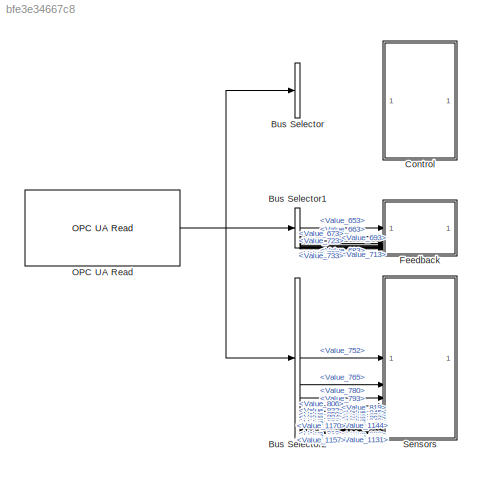
MODEL slx_bfe3e34667c8
KIND model
CONFIG AbsTol = auto
CONFIG EnableMultiTasking = off
CONFIG FixedStep = auto
CONFIG MaxStep = auto
CONFIG MinStep = auto
CONFIG RelTol = 1e-3
CONFIG SampleTimeConstraint = Unconstrained
CONFIG SolverName = VariableStepAuto
CONFIG StartTime = 0.0
CONFIG StopTime = 10.0
BLOCK [BusSelector] Bus Selector
  OutputSignals = Value_527,Value_537,Value_547,Value_557,Value_567,Value_577,Value_587,Value_597,Value_607,Value_617,Value_627,Value_637
BLOCK [BusSelector] Bus Selector1
  OutputSignals = Value_653,Value_663,Value_673,Value_683,Value_693,Value_703,Value_713,Value_723,Value_733
BLOCK [BusSelector] Bus Selector2
  OutputSignals = Value_752,Value_765,Value_780,Value_793,Value_806,Value_819,Value_832,Value_845,Value_858,Value_871,Value_884,Value_897,Value_910,Value_923,Value_936,Value_949,Value_962,Value_975,Value_988,Value_1001,Value_1014,Value_1027,Value_1040,Value_1053,Value_1066,Value_1079,Value_1092,Value_1105,Value_1118,Value_1131,Value_1144,Value_1157,Value_1170
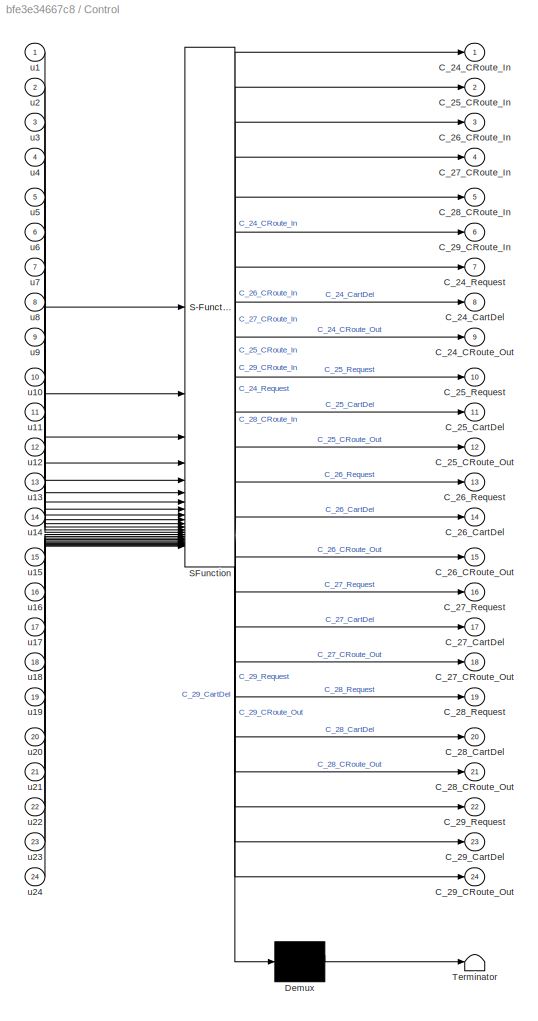
BLOCK [SubSystem] Control
  ErrorFcn = Stateflow.Translate.translate
  PermitHierarchicalResolution = ExplicitOnly
  SFBlockType = MATLAB Function
  TreatAsAtomicUnit = on
BLOCK [Demux] Control/ Demux 
  Outputs = 1
BLOCK [S-Function] Control/ SFunction 
  EnableBusSupport = off
  FunctionName = sf_sfun
  PortCounts = [24 25]
  SFcnIsStateOwnerBlock = off
  SFunctionDeploymentMode = off
  Tag = Stateflow S-Function 1
BLOCK [Terminator] Control/ Terminator 
BLOCK [Outport] Control/C_24_CRoute_In
BLOCK [Outport] Control/C_24_CRoute_Out
  Port = 9
BLOCK [Outport] Control/C_24_CartDel
  Port = 8
BLOCK [Outport] Control/C_24_Request
  Port = 7
BLOCK [Outport] Control/C_25_CRoute_In
  Port = 2
BLOCK [Outport] Control/C_25_CRoute_Out
  Port = 12
BLOCK [Outport] Control/C_25_CartDel
  Port = 11
BLOCK [Outport] Control/C_25_Request
  Port = 10
BLOCK [Outport] Control/C_26_CRoute_In
  Port = 3
BLOCK [Outport] Control/C_26_CRoute_Out
  Port = 15
BLOCK [Outport] Control/C_26_CartDel
  Port = 14
BLOCK [Outport] Control/C_26_Request
  Port = 13
BLOCK [Outport] Control/C_27_CRoute_In
  Port = 4
BLOCK [Outport] Control/C_27_CRoute_Out
  Port = 18
BLOCK [Outport] Control/C_27_CartDel
  Port = 17
BLOCK [Outport] Control/C_27_Request
  Port = 16
BLOCK [Outport] Control/C_28_CRoute_In
  Port = 5
BLOCK [Outport] Control/C_28_CRoute_Out
  Port = 21
BLOCK [Outport] Control/C_28_CartDel
  Port = 20
BLOCK [Outport] Control/C_28_Request
  Port = 19
BLOCK [Outport] Control/C_29_CRoute_In
  Port = 6
BLOCK [Outport] Control/C_29_CRoute_Out
  Port = 24
BLOCK [Outport] Control/C_29_CartDel
  Port = 23
BLOCK [Outport] Control/C_29_Request
  Port = 22
BLOCK [Inport] Control/u1
BLOCK [Inport] Control/u10
  Port = 10
BLOCK [Inport] Control/u11
  Port = 11
BLOCK [Inport] Control/u12
  Port = 12
BLOCK [Inport] Control/u13
  Port = 13
BLOCK [Inport] Control/u14
  Port = 14
BLOCK [Inport] Control/u15
  Port = 15
BLOCK [Inport] Control/u16
  Port = 16
BLOCK [Inport] Control/u17
  Port = 17
BLOCK [Inport] Control/u18
  Port = 18
BLOCK [Inport] Control/u19
  Port = 19
BLOCK [Inport] Control/u2
  Port = 2
BLOCK [Inport] Control/u20
  Port = 20
BLOCK [Inport] Control/u21
  Port = 21
BLOCK [Inport] Control/u22
  Port = 22
BLOCK [Inport] Control/u23
  Port = 23
BLOCK [Inport] Control/u24
  Port = 24
BLOCK [Inport] Control/u3
  Port = 3
BLOCK [Inport] Control/u4
  Port = 4
BLOCK [Inport] Control/u5
  Port = 5
BLOCK [Inport] Control/u6
  Port = 6
BLOCK [Inport] Control/u7
  Port = 7
BLOCK [Inport] Control/u8
  Port = 8
BLOCK [Inport] Control/u9
  Port = 9
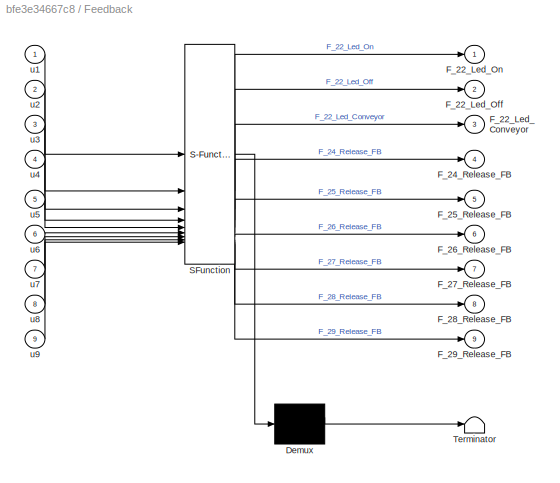
BLOCK [SubSystem] Feedback
  ErrorFcn = Stateflow.Translate.translate
  PermitHierarchicalResolution = ExplicitOnly
  SFBlockType = MATLAB Function
  TreatAsAtomicUnit = on
BLOCK [Demux] Feedback/ Demux 
  Outputs = 1
BLOCK [S-Function] Feedback/ SFunction 
  EnableBusSupport = off
  FunctionName = sf_sfun
  PortCounts = [9 10]
  SFcnIsStateOwnerBlock = off
  SFunctionDeploymentMode = off
  Tag = Stateflow S-Function 3
BLOCK [Terminator] Feedback/ Terminator 
BLOCK [Outport] Feedback/F_22_Led_Conveyor
  Port = 3
BLOCK [Outport] Feedback/F_22_Led_Off
  Port = 2
BLOCK [Outport] Feedback/F_22_Led_On
BLOCK [Outport] Feedback/F_24_Release_FB
  Port = 4
BLOCK [Outport] Feedback/F_25_Release_FB
  Port = 5
BLOCK [Outport] Feedback/F_26_Release_FB
  Port = 6
BLOCK [Outport] Feedback/F_27_Release_FB
  Port = 7
BLOCK [Outport] Feedback/F_28_Release_FB
  Port = 8
BLOCK [Outport] Feedback/F_29_Release_FB
  Port = 9
BLOCK [Inport] Feedback/u1
BLOCK [Inport] Feedback/u2
  Port = 2
BLOCK [Inport] Feedback/u3
  Port = 3
BLOCK [Inport] Feedback/u4
  Port = 4
BLOCK [Inport] Feedback/u5
  Port = 5
BLOCK [Inport] Feedback/u6
  Port = 6
BLOCK [Inport] Feedback/u7
  Port = 7
BLOCK [Inport] Feedback/u8
  Port = 8
BLOCK [Inport] Feedback/u9
  Port = 9
BLOCK [Reference] OPC UA Read  REF=opcualib/OPC UA Read
  SourceBlock = opcualib/OPC UA Read
  SourceType = opcUARead
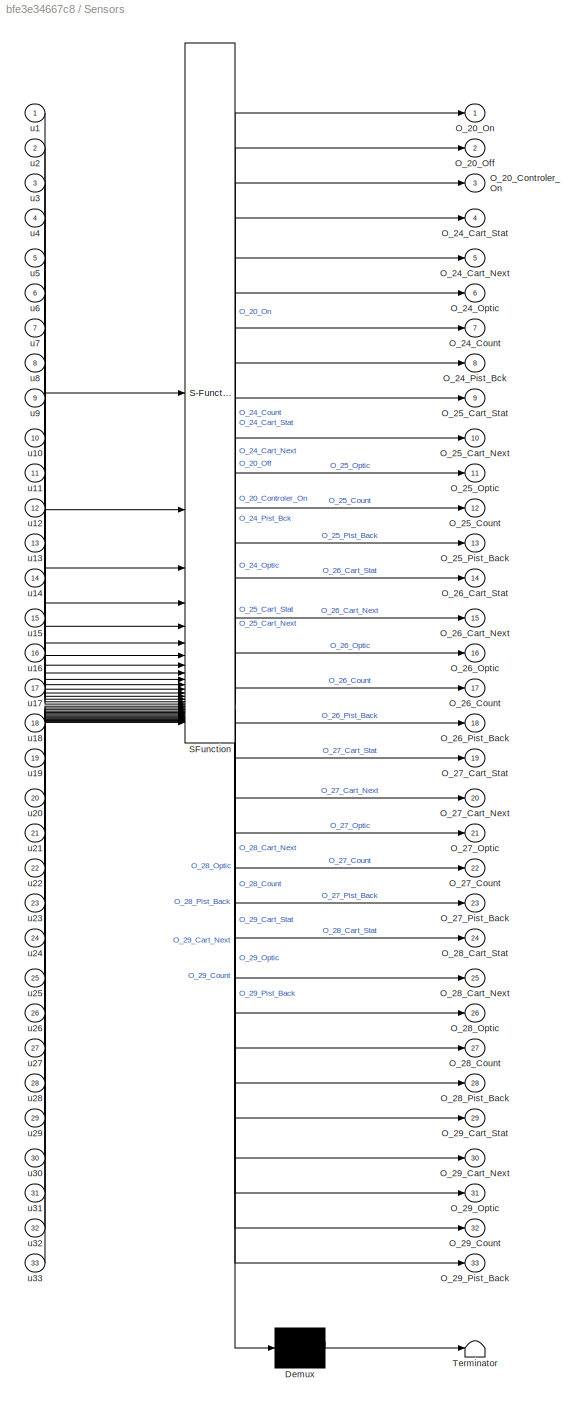
BLOCK [SubSystem] Sensors
  ErrorFcn = Stateflow.Translate.translate
  PermitHierarchicalResolution = ExplicitOnly
  SFBlockType = MATLAB Function
  TreatAsAtomicUnit = on
BLOCK [Demux] Sensors/ Demux 
  Outputs = 1
BLOCK [S-Function] Sensors/ SFunction 
  EnableBusSupport = off
  FunctionName = sf_sfun
  PortCounts = [33 34]
  SFcnIsStateOwnerBlock = off
  SFunctionDeploymentMode = off
  Tag = Stateflow S-Function 4
BLOCK [Terminator] Sensors/ Terminator 
BLOCK [Outport] Sensors/O_20_Controler_On
  Port = 3
BLOCK [Outport] Sensors/O_20_Off
  Port = 2
BLOCK [Outport] Sensors/O_20_On
BLOCK [Outport] Sensors/O_24_Cart_Next
  Port = 5
BLOCK [Outport] Sensors/O_24_Cart_Stat
  Port = 4
BLOCK [Outport] Sensors/O_24_Count
  Port = 7
BLOCK [Outport] Sensors/O_24_Optic
  Port = 6
BLOCK [Outport] Sensors/O_24_Pist_Bck
  Port = 8
BLOCK [Outport] Sensors/O_25_Cart_Next
  Port = 10
BLOCK [Outport] Sensors/O_25_Cart_Stat
  Port = 9
BLOCK [Outport] Sensors/O_25_Count
  Port = 12
BLOCK [Outport] Sensors/O_25_Optic
  Port = 11
BLOCK [Outport] Sensors/O_25_Pist_Back
  Port = 13
BLOCK [Outport] Sensors/O_26_Cart_Next
  Port = 15
BLOCK [Outport] Sensors/O_26_Cart_Stat
  Port = 14
BLOCK [Outport] Sensors/O_26_Count
  Port = 17
BLOCK [Outport] Sensors/O_26_Optic
  Port = 16
BLOCK [Outport] Sensors/O_26_Pist_Back
  Port = 18
BLOCK [Outport] Sensors/O_27_Cart_Next
  Port = 20
BLOCK [Outport] Sensors/O_27_Cart_Stat
  Port = 19
BLOCK [Outport] Sensors/O_27_Count
  Port = 22
BLOCK [Outport] Sensors/O_27_Optic
  Port = 21
BLOCK [Outport] Sensors/O_27_Pist_Back
  Port = 23
BLOCK [Outport] Sensors/O_28_Cart_Next
  Port = 25
BLOCK [Outport] Sensors/O_28_Cart_Stat
  Port = 24
BLOCK [Outport] Sensors/O_28_Count
  Port = 27
BLOCK [Outport] Sensors/O_28_Optic
  Port = 26
BLOCK [Outport] Sensors/O_28_Pist_Back
  Port = 28
BLOCK [Outport] Sensors/O_29_Cart_Next
  Port = 30
BLOCK [Outport] Sensors/O_29_Cart_Stat
  Port = 29
BLOCK [Outport] Sensors/O_29_Count
  Port = 32
BLOCK [Outport] Sensors/O_29_Optic
  Port = 31
BLOCK [Outport] Sensors/O_29_Pist_Back
  Port = 33
BLOCK [Inport] Sensors/u1
BLOCK [Inport] Sensors/u10
  Port = 10
BLOCK [Inport] Sensors/u11
  Port = 11
BLOCK [Inport] Sensors/u12
  Port = 12
BLOCK [Inport] Sensors/u13
  Port = 13
BLOCK [Inport] Sensors/u14
  Port = 14
BLOCK [Inport] Sensors/u15
  Port = 15
BLOCK [Inport] Sensors/u16
  Port = 16
BLOCK [Inport] Sensors/u17
  Port = 17
BLOCK [Inport] Sensors/u18
  Port = 18
BLOCK [Inport] Sensors/u19
  Port = 19
BLOCK [Inport] Sensors/u2
  Port = 2
BLOCK [Inport] Sensors/u20
  Port = 20
BLOCK [Inport] Sensors/u21
  Port = 21
BLOCK [Inport] Sensors/u22
  Port = 22
BLOCK [Inport] Sensors/u23
  Port = 23
BLOCK [Inport] Sensors/u24
  Port = 24
BLOCK [Inport] Sensors/u25
  Port = 25
BLOCK [Inport] Sensors/u26
  Port = 26
BLOCK [Inport] Sensors/u27
  Port = 27
BLOCK [Inport] Sensors/u28
  Port = 28
BLOCK [Inport] Sensors/u29
  Port = 29
BLOCK [Inport] Sensors/u3
  Port = 3
BLOCK [Inport] Sensors/u30
  Port = 30
BLOCK [Inport] Sensors/u31
  Port = 31
BLOCK [Inport] Sensors/u32
  Port = 32
BLOCK [Inport] Sensors/u33
  Port = 33
BLOCK [Inport] Sensors/u4
  Port = 4
BLOCK [Inport] Sensors/u5
  Port = 5
BLOCK [Inport] Sensors/u6
  Port = 6
BLOCK [Inport] Sensors/u7
  Port = 7
BLOCK [Inport] Sensors/u8
  Port = 8
BLOCK [Inport] Sensors/u9
  Port = 9
LINE Bus Selector1:1 -> Feedback:1
LINE Bus Selector1:2 -> Feedback:2
LINE Bus Selector1:3 -> Feedback:3
LINE Bus Selector1:4 -> Feedback:4
LINE Bus Selector1:5 -> Feedback:5
LINE Bus Selector1:6 -> Feedback:6
LINE Bus Selector1:7 -> Feedback:7
LINE Bus Selector1:8 -> Feedback:8
LINE Bus Selector1:9 -> Feedback:9
LINE Bus Selector2:1 -> Sensors:1
LINE Bus Selector2:10 -> Sensors:10
LINE Bus Selector2:11 -> Sensors:11
LINE Bus Selector2:12 -> Sensors:12
LINE Bus Selector2:13 -> Sensors:13
LINE Bus Selector2:14 -> Sensors:14
LINE Bus Selector2:15 -> Sensors:15
LINE Bus Selector2:16 -> Sensors:16
LINE Bus Selector2:17 -> Sensors:17
LINE Bus Selector2:18 -> Sensors:18
LINE Bus Selector2:19 -> Sensors:19
LINE Bus Selector2:2 -> Sensors:2
LINE Bus Selector2:20 -> Sensors:20
LINE Bus Selector2:21 -> Sensors:21
LINE Bus Selector2:22 -> Sensors:22
LINE Bus Selector2:23 -> Sensors:23
LINE Bus Selector2:24 -> Sensors:24
LINE Bus Selector2:25 -> Sensors:25
LINE Bus Selector2:26 -> Sensors:26
LINE Bus Selector2:27 -> Sensors:27
LINE Bus Selector2:28 -> Sensors:28
LINE Bus Selector2:29 -> Sensors:29
LINE Bus Selector2:3 -> Sensors:3
LINE Bus Selector2:30 -> Sensors:30
LINE Bus Selector2:31 -> Sensors:31
LINE Bus Selector2:32 -> Sensors:32
LINE Bus Selector2:33 -> Sensors:33
LINE Bus Selector2:4 -> Sensors:4
LINE Bus Selector2:5 -> Sensors:5
LINE Bus Selector2:6 -> Sensors:6
LINE Bus Selector2:7 -> Sensors:7
LINE Bus Selector2:8 -> Sensors:8
LINE Bus Selector2:9 -> Sensors:9
NET OPC UA Read:1 -> Bus Selector1:1, Bus Selector2:1, Bus Selector:1
note: NET lines group one-source signal fan-out (src -> all destinations, sorted); 1:1 wires keep LINE
CHART Feedback states=1 transitions=1
  STATE_LABEL 'eML_blk_kernel()'
  STATE_LABEL 'SCRIPT:\nfunction [F_22_Led_On,F_22_Led_Off,F_22_Led_Conveyor,F_24_Release_FB,...\n    F_25_Release_FB,F_26_Release_FB,F_27_Release_FB,F_28_Release_FB,...\n    F_29_Release_FB] = fcn_Feedback(u1,u2,u3,u4,u5,u6,u7,u8,u9)\n\nF_22_Led_On = u1;\nF_22_Led_Off = u2;\nF_22_Led_Conveyor = u3;\nF_24_Release_FB = u4;\nF_25_Release_FB = u5;\nF_26_Release_FB = u6;\nF_27_Release_FB = u7;\nF_28_Release_FB = u8;\nF_29_Releas...<+10ch>'
CHART Sensors states=1 transitions=1
  STATE_LABEL 'eML_blk_kernel()'
  STATE_LABEL 'SCRIPT:\nfunction [O_20_On,O_20_Off,O_20_Controler_On,...\n    O_24_Cart_Stat,O_24_Cart_Next,O_24_Optic,O_24_Count,O_24_Pist_Bck,...\n    O_25_Cart_Stat,O_25_Cart_Next,O_25_Optic,O_25_Count,O_25_Pist_Back,...\n    O_26_Cart_Stat,O_26_Cart_Next,O_26_Optic,O_26_Count,O_26_Pist_Back,...\n    O_27_Cart_Stat,O_27_Cart_Next,O_27_Optic,O_27_Count,O_27_Pist_Back,...\n    O_28_Cart_Stat,O_28_Cart_Next,O_28_Optic...<+1121ch>'
CHART Control states=1 transitions=1
  STATE_LABEL 'eML_blk_kernel()'
  STATE_LABEL 'SCRIPT:\nfunction [C_24_CRoute_In,C_25_CRoute_In,C_26_CRoute_In,C_27_CRoute_In,...\nC_28_CRoute_In,C_29_CRoute_In,C_24_Request,C_24_CartDel,C_24_CRoute_Out,...\nC_25_Request,C_25_CartDel,C_25_CRoute_Out,C_26_Request,C_26_CartDel,...\nC_26_CRoute_Out,C_27_Request,C_27_CartDel,C_27_CRoute_Out,C_28_Request,...\nC_28_CartDel,C_28_CRoute_Out,C_29_Request,C_29_CartDel,C_29_CRoute_Out]...\n= fcn_Control(u1,u2,...<+588ch>'
CHART  states=0 transitions=0
CHART  states=0 transitions=0
CHART  states=0 transitions=0
